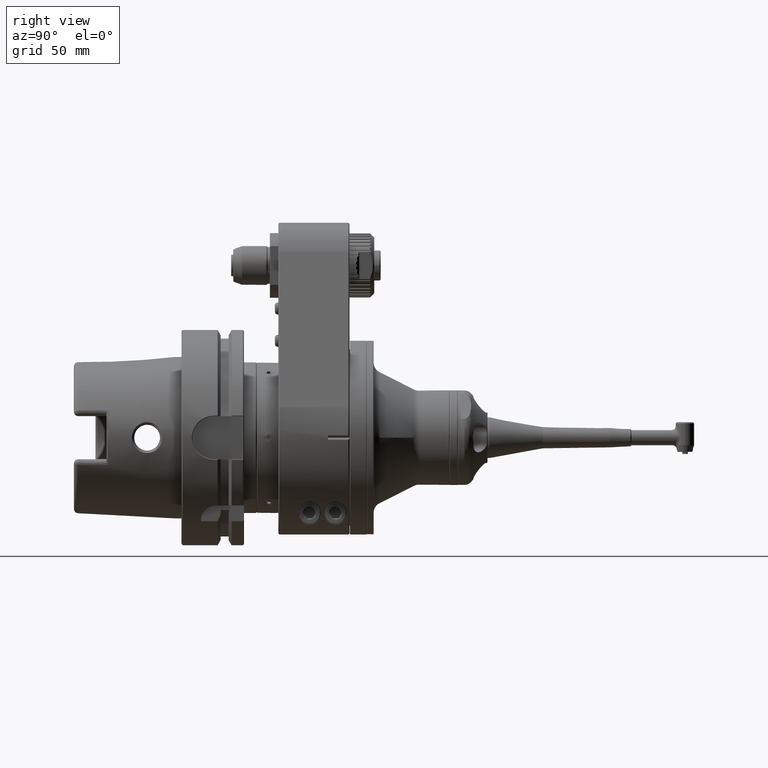
[diagram: clean part render]
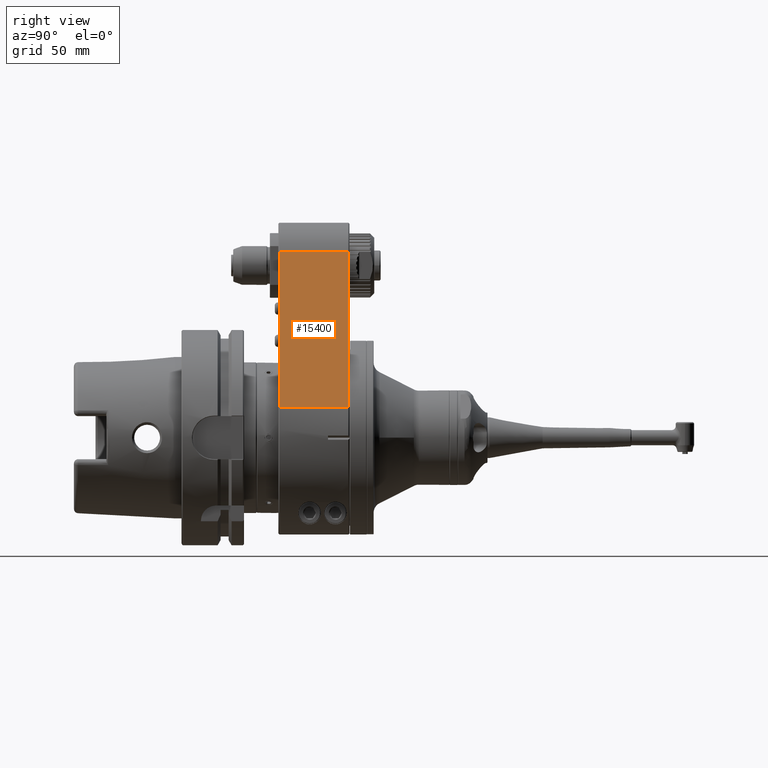
[diagram: same view with one face highlighted and labeled with its STEP entity id]
A machine part, right view. The second image highlights one B-rep face of the part: STEP entity #15400.
In plain terms, the highlighted planar face has unit normal (0.9499, 0, 0.3125).
Its self-contained STEP definition (entity closure, byte-faithful):
#883=LINE('',#29545,#2017);
#890=LINE('',#29568,#2024);
#892=LINE('',#29659,#2026);
#897=LINE('',#29670,#2031);
#2017=VECTOR('',#19344,10.);
#2024=VECTOR('',#19371,31.99993455525);
#2026=VECTOR('',#19381,10.);
#2031=VECTOR('',#19396,31.99993727025);
#3507=FACE_OUTER_BOUND('',#4480,.T.);
#4480=EDGE_LOOP('',(#11401,#11402,#11403,#11404));
#6533=VERTEX_POINT('',#29540);
#6534=VERTEX_POINT('',#29544);
#6540=VERTEX_POINT('',#29567);
#6544=VERTEX_POINT('',#29658);
#8298=EDGE_CURVE('',#6533,#6534,#883,.T.);
#8310=EDGE_CURVE('',#6534,#6540,#890,.T.);
#8316=EDGE_CURVE('',#6540,#6544,#892,.T.);
#8322=EDGE_CURVE('',#6533,#6544,#897,.T.);
#11401=ORIENTED_EDGE('',*,*,#8316,.F.);
#11402=ORIENTED_EDGE('',*,*,#8310,.F.);
#11403=ORIENTED_EDGE('',*,*,#8298,.F.);
#11404=ORIENTED_EDGE('',*,*,#8322,.T.);
#14772=PLANE('',#16713);
#15400=ADVANCED_FACE('',(#3507),#14772,.T.);
#16713=AXIS2_PLACEMENT_3D('',#29671,#19397,#19398);
#19344=DIRECTION('',(0.31249999999999,1.40130751937532E-14,-0.94991775959817));
#19371=DIRECTION('',(0.,-1.,0.));
#19381=DIRECTION('',(-0.31249999999999,1.40130751937532E-14,0.94991775959817));
#19396=DIRECTION('',(0.,-1.,0.));
#19397=DIRECTION('center_axis',(0.94991775959817,0.,0.31249999999999));
#19398=DIRECTION('ref_axis',(-0.31249999999999,0.,0.94991775959817));
#29540=CARTESIAN_POINT('',(18.9983203231591,24.4999219759926,86.249988474028));
#29544=CARTESIAN_POINT('',(42.7462627732489,24.4999186004829,14.0624880714628));
#29545=CARTESIAN_POINT('',(36.8093131844315,24.4999999999966,32.1093750000006));
#29567=CARTESIAN_POINT('',(42.7462627732517,-7.49991860048883,14.0624880714638));
#29568=CARTESIAN_POINT('',(42.74626808292,24.49996727763,14.06248981822));
#29658=CARTESIAN_POINT('',(18.9983203231624,-7.49992197599456,86.2499884740291));
#29659=CARTESIAN_POINT('',(36.8093131844314,-7.49999999999664,32.1093750000008));
#29670=CARTESIAN_POINT('',(18.99832541251,24.49996863513,86.2499901483));
#29671=CARTESIAN_POINT('Origin',(42.74629918192,25.,14.0625));